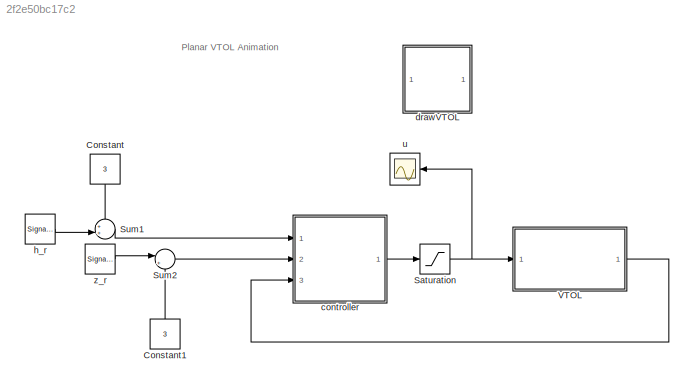
MODEL slx_2f2e50bc17c2
KIND model
CONFIG AbsTol = auto
CONFIG EnableMultiTasking = on
CONFIG FixedStep = auto
CONFIG InitFcn = addpath ./..\nVTOL_param\nVTOLParamHW13
CONFIG MaxStep = auto
CONFIG MinStep = auto
CONFIG RelTol = 1e-3
CONFIG SampleTimeConstraint = Unconstrained
CONFIG Solver = ode45
CONFIG SolverName = ode45
CONFIG StartTime = 0.0
CONFIG StopTime = 100
BLOCK [Constant] Constant
  Value = 3
BLOCK [Constant] Constant1
  Value = 3
BLOCK [Saturate] Saturation
  InputPortMap = u0
  LowerLimit = 0
  Ports = [1, 1]
  UpperLimit = P.fmax
BLOCK [Sum] Sum1
  IconShape = round
  InputSameDT = off
  Inputs = ++|
  OutDataTypeStr = Inherit: Inherit via internal rule
  Ports = [2, 1]
  SaturateOnIntegerOverflow = off
BLOCK [Sum] Sum2
  IconShape = round
  InputSameDT = off
  Inputs = |++
  OutDataTypeStr = Inherit: Inherit via internal rule
  Ports = [2, 1]
  SaturateOnIntegerOverflow = off
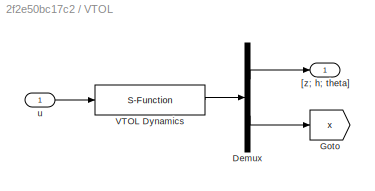
BLOCK [SubSystem] VTOL
  Ports = [1, 1]
  RequestExecContextInheritance = off
  Variant = off
BLOCK [Demux] VTOL/Demux
  DisplayOption = bar
  Outputs = [3;6]
  Ports = [1, 2]
BLOCK [Goto] VTOL/Goto
  GotoTag = x
  TagVisibility = global
BLOCK [S-Function] VTOL/VTOL Dynamics
  EnableBusSupport = off
  FunctionName = VTOL_dynamics
  Parameters = P
  Ports = [1, 1]
  SFcnIsStateOwnerBlock = off
  SFunctionDeploymentMode = off
BLOCK [Outport] VTOL/[z; h; theta]
  IconDisplay = Port number
BLOCK [Inport] VTOL/u
  IconDisplay = Port number
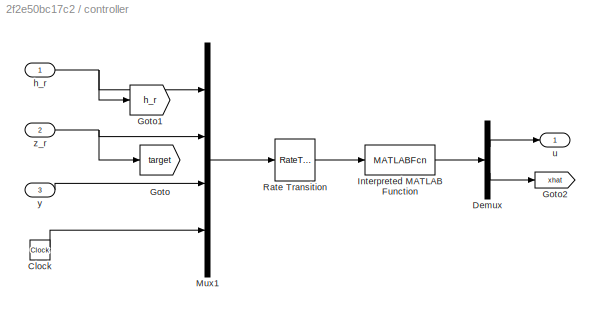
BLOCK [SubSystem] controller
  Ports = [3, 1]
  RequestExecContextInheritance = off
  Variant = off
BLOCK [Clock] controller/Clock
BLOCK [Demux] controller/Demux
  DisplayOption = bar
  Outputs = [2;6]
  Ports = [1, 2]
BLOCK [Goto] controller/Goto
  GotoTag = target
  TagVisibility = global
BLOCK [Goto] controller/Goto1
  GotoTag = h_r
  TagVisibility = global
BLOCK [Goto] controller/Goto2
  GotoTag = xhat
  TagVisibility = global
BLOCK [MATLABFcn] controller/Interpreted MATLAB Function
  MATLABFcn = VTOL_ctrl(u,P)
  OutputDimensions = 2+6
  Ports = [1, 1]
BLOCK [Mux] controller/Mux1
  DisplayOption = bar
  Ports = [4, 1]
BLOCK [RateTransition] controller/Rate Transition
  OutPortSampleTime = P.Ts
BLOCK [Inport] controller/h_r
  IconDisplay = Port number
BLOCK [Outport] controller/u
  IconDisplay = Port number
BLOCK [Inport] controller/y
  IconDisplay = Port number
  Port = 3
BLOCK [Inport] controller/z_r
  IconDisplay = Port number
  Port = 2
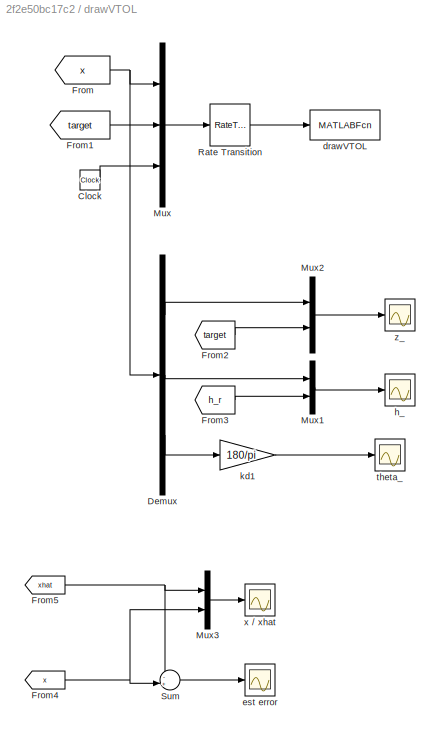
BLOCK [SubSystem] drawVTOL
  Ports = []
  RequestExecContextInheritance = off
  Variant = off
BLOCK [Clock] drawVTOL/Clock
BLOCK [Demux] drawVTOL/Demux
  DisplayOption = bar
  Outputs = 3
  Ports = [1, 3]
BLOCK [From] drawVTOL/From
  GotoTag = x
  TagVisibility = global
BLOCK [From] drawVTOL/From1
  GotoTag = target
  TagVisibility = global
BLOCK [From] drawVTOL/From2
  GotoTag = target
  TagVisibility = global
BLOCK [From] drawVTOL/From3
  GotoTag = h_r
  TagVisibility = global
BLOCK [From] drawVTOL/From4
  GotoTag = x
  TagVisibility = global
BLOCK [From] drawVTOL/From5
  GotoTag = xhat
  TagVisibility = global
BLOCK [Mux] drawVTOL/Mux
  DisplayOption = bar
  Inputs = 3
  Ports = [3, 1]
BLOCK [Mux] drawVTOL/Mux1
  DisplayOption = bar
  Inputs = 2
  Ports = [2, 1]
BLOCK [Mux] drawVTOL/Mux2
  DisplayOption = bar
  Inputs = 2
  Ports = [2, 1]
BLOCK [Mux] drawVTOL/Mux3
  DisplayOption = bar
  Inputs = 2
  Ports = [2, 1]
BLOCK [RateTransition] drawVTOL/Rate Transition
  OutPortSampleTime = P.t_plot
BLOCK [Sum] drawVTOL/Sum
  IconShape = round
  InputSameDT = off
  Inputs = -+|
  OutDataTypeStr = Inherit: Inherit via internal rule
  Ports = [2, 1]
  SaturateOnIntegerOverflow = off
BLOCK [MATLABFcn] drawVTOL/drawVTOL
  MATLABFcn = VTOL_animation(u,P)
  OutputDimensions = 0
  Ports = [1]
BLOCK [Scope] drawVTOL/est error
  NumInputPorts = 1
  Ports = [1]
  ScopeSpecificationString = Simulink.scopes.TimeScopeBlockCfg('CurrentConfiguration', extmgr.ConfigurationSet(extmgr.Configuration('Core','General UI',true),extmgr.Configuration('Core','Source UI',true),extmgr.Configuration('Sources','WiredSimulink',true,'DataLoggingSaveFormat','StructureWithTime','DataLoggingDecimation','1','DataLoggingDecimateData',true,'DataLoggingVariableName','ScopeData1'),extmgr.Configuration('Visuals'...<+1683ch>
BLOCK [Scope] drawVTOL/h_
  NumInputPorts = 1
  Ports = [1]
  ScopeSpecificationString = Simulink.scopes.TimeScopeBlockCfg('CurrentConfiguration', extmgr.ConfigurationSet(extmgr.Configuration('Core','General UI',true),extmgr.Configuration('Core','Source UI',true),extmgr.Configuration('Sources','WiredSimulink',true,'DataLoggingVariableName','ScopeData1','DataLoggingSaveFormat','StructureWithTime','DataLoggingDecimation','1','DataLoggingDecimateData',true),extmgr.Configuration('Visuals'...<+1731ch>
BLOCK [Gain] drawVTOL/kd1
  Gain = 180/pi
  OutDataTypeStr = Inherit: Inherit via internal rule
  ParamDataTypeStr = Inherit: Inherit via internal rule
  SaturateOnIntegerOverflow = off
BLOCK [Scope] drawVTOL/theta_
  NumInputPorts = 1
  Ports = [1]
  ScopeSpecificationString = Simulink.scopes.TimeScopeBlockCfg('CurrentConfiguration', extmgr.ConfigurationSet(extmgr.Configuration('Core','General UI',true),extmgr.Configuration('Core','Source UI',true),extmgr.Configuration('Sources','WiredSimulink',true,'DataLoggingVariableName','ScopeData2','DataLoggingSaveFormat','StructureWithTime','DataLoggingDecimation','1','DataLoggingDecimateData',true),extmgr.Configuration('Visuals'...<+1738ch>
BLOCK [Scope] drawVTOL/x // xhat
  NumInputPorts = 1
  Ports = [1]
  ScopeSpecificationString = Simulink.scopes.TimeScopeBlockCfg('CurrentConfiguration', extmgr.ConfigurationSet(extmgr.Configuration('Core','General UI',true),extmgr.Configuration('Core','Source UI',true),extmgr.Configuration('Sources','WiredSimulink',true,'DataLoggingVariableName','ScopeData2','DataLoggingSaveFormat','StructureWithTime','DataLoggingDecimation','1','DataLoggingDecimateData',true),extmgr.Configuration('Visuals'...<+1685ch>
BLOCK [Scope] drawVTOL/z_
  NumInputPorts = 1
  Ports = [1]
  ScopeSpecificationString = Simulink.scopes.TimeScopeBlockCfg('CurrentConfiguration', extmgr.ConfigurationSet(extmgr.Configuration('Core','General UI',true),extmgr.Configuration('Core','Source UI',true),extmgr.Configuration('Sources','WiredSimulink',true,'DataLoggingVariableName','ScopeData3','DataLoggingSaveFormat','StructureWithTime','DataLoggingDecimation','1','DataLoggingDecimateData',true),extmgr.Configuration('Visuals'...<+1755ch>
BLOCK [SignalGenerator] h_r
  Amplitude = 2.5
  Frequency = .03
  Ports = [0, 1]
  WaveForm = square
BLOCK [Scope] u
  NumInputPorts = 1
  Ports = [1]
  ScopeSpecificationString = Simulink.scopes.TimeScopeBlockCfg('CurrentConfiguration', extmgr.ConfigurationSet(extmgr.Configuration('Core','General UI',true),extmgr.Configuration('Core','Source UI',true),extmgr.Configuration('Sources','WiredSimulink',true,'DataLoggingVariableName','ScopeData2','DataLoggingLimitDataPoints',true,'DataLoggingSaveFormat','Array','DataLoggingDecimation','1','DataLoggingDecimateData',true),extmgr.C...<+1710ch>
BLOCK [SignalGenerator] z_r
  Amplitude = 2.5
  Frequency = .02
  Ports = [0, 1]
  WaveForm = square
ANNOTATION (root): Planar VTOL Animation
LINE Constant1:1 -> Sum2:2
LINE Constant:1 -> Sum1:1
NET Saturation:1 -> VTOL:1, u:1
LINE Sum1:1 -> controller:1
LINE Sum2:1 -> controller:2
LINE VTOL/Demux:1 -> VTOL/[z; h; theta]:1
LINE VTOL/Demux:2 -> VTOL/Goto:1
LINE VTOL/VTOL Dynamics:1 -> VTOL/Demux:1
LINE VTOL/u:1 -> VTOL/VTOL Dynamics:1
LINE VTOL:1 -> controller:3
LINE controller/Clock:1 -> controller/Mux1:4
LINE controller/Demux:1 -> controller/u:1
LINE controller/Demux:2 -> controller/Goto2:1
LINE controller/Interpreted MATLAB Function:1 -> controller/Demux:1
LINE controller/Mux1:1 -> controller/Rate Transition:1
LINE controller/Rate Transition:1 -> controller/Interpreted MATLAB Function:1
NET controller/h_r:1 -> controller/Goto1:1, controller/Mux1:1
LINE controller/y:1 -> controller/Mux1:3
NET controller/z_r:1 -> controller/Goto:1, controller/Mux1:2
LINE controller:1 -> Saturation:1
LINE drawVTOL/Clock:1 -> drawVTOL/Mux:3
LINE drawVTOL/Demux:1 -> drawVTOL/Mux2:1
LINE drawVTOL/Demux:2 -> drawVTOL/Mux1:1
LINE drawVTOL/Demux:3 -> drawVTOL/kd1:1
LINE drawVTOL/From1:1 -> drawVTOL/Mux:2
LINE drawVTOL/From2:1 -> drawVTOL/Mux2:2
LINE drawVTOL/From3:1 -> drawVTOL/Mux1:2
NET drawVTOL/From4:1 -> drawVTOL/Mux3:2, drawVTOL/Sum:2
NET drawVTOL/From5:1 -> drawVTOL/Mux3:1, drawVTOL/Sum:1
NET drawVTOL/From:1 -> drawVTOL/Demux:1, drawVTOL/Mux:1
LINE drawVTOL/Mux1:1 -> drawVTOL/h_:1
LINE drawVTOL/Mux2:1 -> drawVTOL/z_:1
LINE drawVTOL/Mux3:1 -> drawVTOL/x // xhat:1
LINE drawVTOL/Mux:1 -> drawVTOL/Rate Transition:1
LINE drawVTOL/Rate Transition:1 -> drawVTOL/drawVTOL:1
LINE drawVTOL/Sum:1 -> drawVTOL/est error:1
LINE drawVTOL/kd1:1 -> drawVTOL/theta_:1
LINE h_r:1 -> Sum1:2
LINE z_r:1 -> Sum2:1
note: NET lines group one-source signal fan-out (src -> all destinations, sorted); 1:1 wires keep LINE
